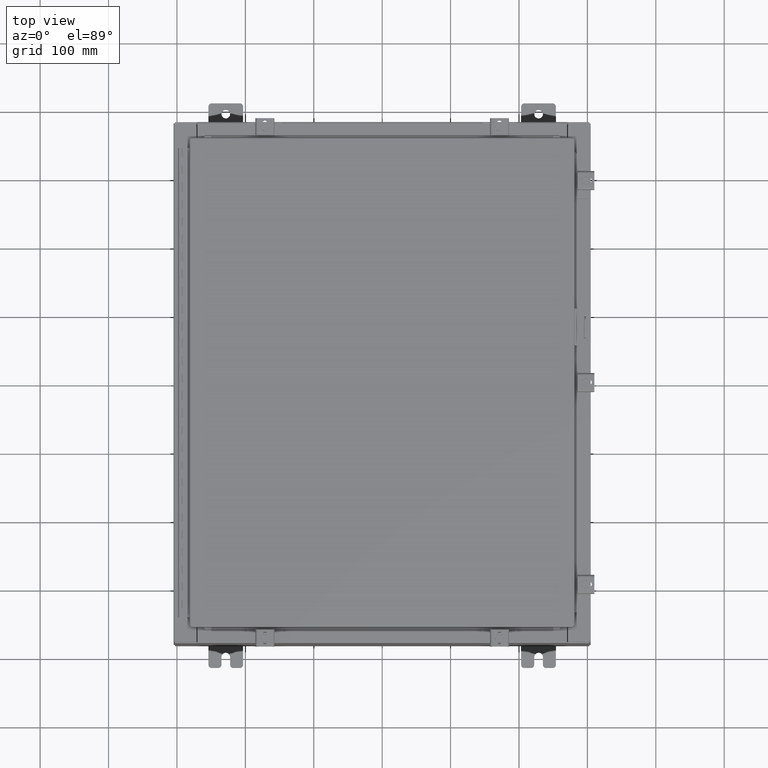
[diagram: clean part render]
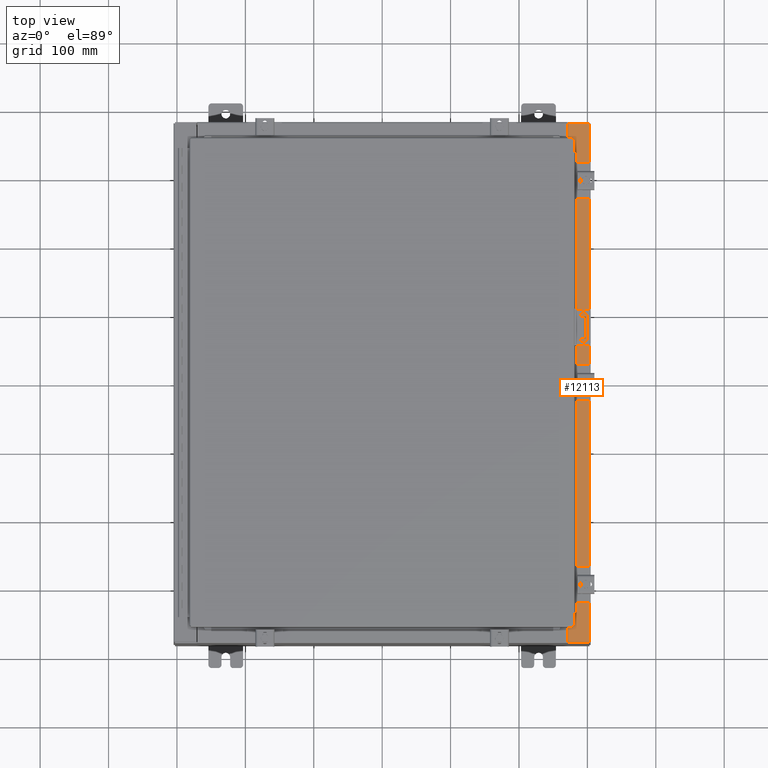
[diagram: same view with one face highlighted and labeled with its STEP entity id]
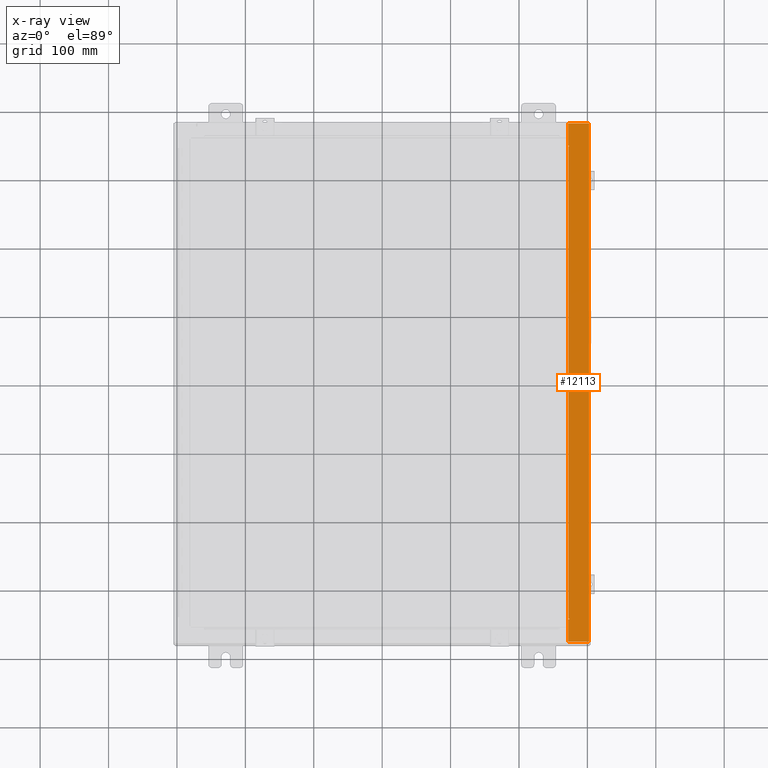
[diagram: x-ray of the same camera — body ghosted, the highlighted face saturated]
A machine part, top view. The second image highlights one B-rep face of the part: STEP entity #12113.
The next image is the same camera in x-ray: the body ghosted, the highlighted face saturated — about 0% of this face is hidden behind the body in this view.
In plain terms, the highlighted planar face has unit normal (-0, 0, -1).
Its self-contained STEP definition (entity closure, byte-faithful):
#699 = ORIENTED_EDGE ( 'NONE', *, *, #17463, .F. ) ;
#931 = VECTOR ( 'NONE', #15408, 39.37007874015748100 ) ;
#1081 = AXIS2_PLACEMENT_3D ( 'NONE', #29965, #23346, #25343 ) ;
#1295 = AXIS2_PLACEMENT_3D ( 'NONE', #14265, #31699, #14389 ) ;
#1297 = LINE ( 'NONE', #31774, #15767 ) ;
#2479 = EDGE_CURVE ( 'NONE', #36858, #18538, #30727, .T. ) ;
#2612 = EDGE_CURVE ( 'NONE', #6537, #30494, #21292, .T. ) ;
#4222 = VERTEX_POINT ( 'NONE', #16111 ) ;
#4487 = ORIENTED_EDGE ( 'NONE', *, *, #31104, .F. ) ;
#4903 = VERTEX_POINT ( 'NONE', #11041 ) ;
#5067 = LINE ( 'NONE', #21038, #27238 ) ;
#5132 = LINE ( 'NONE', #8047, #35910 ) ;
#5388 = EDGE_CURVE ( 'NONE', #9351, #4222, #14932, .T. ) ;
#5691 = PLANE ( 'NONE',  #1295 ) ;
#5707 = FACE_OUTER_BOUND ( 'NONE', #17591, .T. ) ;
#6063 = DIRECTION ( 'NONE',  ( -5.135634964896009300E-031, -1.000000000000000000, 2.747344792763031300E-045 ) ) ;
#6179 = ORIENTED_EDGE ( 'NONE', *, *, #5388, .F. ) ;
#6360 = EDGE_CURVE ( 'NONE', #30494, #11906, #1297, .T. ) ;
#6421 = CARTESIAN_POINT ( 'NONE',  ( 10.75005000000003400, -13.61242500000000000, 9.925300000000008900 ) ) ;
#6537 = VERTEX_POINT ( 'NONE', #11660 ) ;
#7151 = CARTESIAN_POINT ( 'NONE',  ( 10.75005000000003400, 13.63109999999999800, 9.925300000000008900 ) ) ;
#7561 = CARTESIAN_POINT ( 'NONE',  ( 10.69970000000003200, 13.63109999999999800, 9.925300000000008900 ) ) ;
#7784 = LINE ( 'NONE', #7151, #21399 ) ;
#8047 = CARTESIAN_POINT ( 'NONE',  ( 11.91230000000003200, -14.92529999999999800, 9.925300000000001800 ) ) ;
#8972 = ORIENTED_EDGE ( 'NONE', *, *, #33617, .F. ) ;
#9313 = DIRECTION ( 'NONE',  ( 1.000000000000000000, 0.0000000000000000000, 0.0000000000000000000 ) ) ;
#9351 = VERTEX_POINT ( 'NONE', #29351 ) ;
#9396 = ORIENTED_EDGE ( 'NONE', *, *, #36766, .F. ) ;
#9784 = VECTOR ( 'NONE', #10780, 39.37007874015748100 ) ;
#9831 = ORIENTED_EDGE ( 'NONE', *, *, #2479, .T. ) ;
#10046 = DIRECTION ( 'NONE',  ( -1.000000000000000000, 0.0000000000000000000, 0.0000000000000000000 ) ) ;
#10780 = DIRECTION ( 'NONE',  ( 1.000000000000000000, 0.0000000000000000000, 0.0000000000000000000 ) ) ;
#11041 = CARTESIAN_POINT ( 'NONE',  ( 10.71270000000003500, 13.59375000000000000, 9.925300000000008900 ) ) ;
#11463 = VERTEX_POINT ( 'NONE', #20025 ) ;
#11660 = CARTESIAN_POINT ( 'NONE',  ( 11.91230000000003200, 14.92529999999999800, 9.925300000000001800 ) ) ;
#11677 = LINE ( 'NONE', #32006, #33853 ) ;
#11906 = VERTEX_POINT ( 'NONE', #7561 ) ;
#12113 = ADVANCED_FACE ( 'NONE', ( #5707 ), #5691, .F. ) ;
#12240 = EDGE_CURVE ( 'NONE', #27054, #32953, #15639, .T. ) ;
#13687 = CARTESIAN_POINT ( 'NONE',  ( 10.69970000000003200, -13.63109999999999800, 9.925300000000008900 ) ) ;
#14265 = CARTESIAN_POINT ( 'NONE',  ( 5.335691853495958500E-014, 0.0000000000000000000, 9.925300000000065700 ) ) ;
#14389 = DIRECTION ( 'NONE',  ( -1.000000000000000000, 0.0000000000000000000, 5.349571789159788500E-015 ) ) ;
#14845 = CARTESIAN_POINT ( 'NONE',  ( 11.91230000000003200, -14.92529999999999800, 9.925300000000001800 ) ) ;
#14932 = CIRCLE ( 'NONE', #1081, 0.01867499999999949400 ) ;
#15408 = DIRECTION ( 'NONE',  ( -5.135634964896009300E-031, -1.000000000000000000, 2.747344792763031300E-045 ) ) ;
#15639 = CIRCLE ( 'NONE', #18771, 0.01867499999999949400 ) ;
#15767 = VECTOR ( 'NONE', #6063, 39.37007874015748100 ) ;
#16111 = CARTESIAN_POINT ( 'NONE',  ( 10.75005000000003400, 13.63109999999999800, 9.925300000000008900 ) ) ;
#16553 = DIRECTION ( 'NONE',  ( -0.0000000000000000000, -1.000000000000000000, -0.0000000000000000000 ) ) ;
#16606 = VECTOR ( 'NONE', #22323, 39.37007874015748100 ) ;
#17463 = EDGE_CURVE ( 'NONE', #4903, #9351, #18069, .T. ) ;
#17591 = EDGE_LOOP ( 'NONE', ( #4487, #9831, #31174, #24876, #24827, #17627, #32496, #6179, #699, #9396, #8972, #20033 ) ) ;
#17627 = ORIENTED_EDGE ( 'NONE', *, *, #6360, .T. ) ;
#17640 = EDGE_CURVE ( 'NONE', #18538, #23135, #11677, .T. ) ;
#18069 = LINE ( 'NONE', #34058, #32522 ) ;
#18538 = VERTEX_POINT ( 'NONE', #37149 ) ;
#18648 = CARTESIAN_POINT ( 'NONE',  ( 10.75005000000003400, -13.63109999999999800, 9.925300000000008900 ) ) ;
#18771 = AXIS2_PLACEMENT_3D ( 'NONE', #6421, #26668, #9313 ) ;
#18839 = CARTESIAN_POINT ( 'NONE',  ( 5.335691853495958500E-014, 14.92529999999999800, 9.925300000000065700 ) ) ;
#19333 = DIRECTION ( 'NONE',  ( -1.000000000000000000, 4.861730685829018000E-063, 5.349571789159789300E-015 ) ) ;
#20025 = CARTESIAN_POINT ( 'NONE',  ( 10.71270000000003500, -13.59375000000000000, 9.925300000000008900 ) ) ;
#20033 = ORIENTED_EDGE ( 'NONE', *, *, #12240, .F. ) ;
#20688 = EDGE_CURVE ( 'NONE', #6537, #23135, #5132, .T. ) ;
#21038 = CARTESIAN_POINT ( 'NONE',  ( 10.75005000000003400, -13.59375000000000000, 9.925300000000008900 ) ) ;
#21086 = EDGE_CURVE ( 'NONE', #4222, #11906, #7784, .T. ) ;
#21292 = LINE ( 'NONE', #18839, #34851 ) ;
#21399 = VECTOR ( 'NONE', #10046, 39.37007874015748100 ) ;
#22323 = DIRECTION ( 'NONE',  ( -0.0000000000000000000, 1.000000000000000000, -0.0000000000000000000 ) ) ;
#23135 = VERTEX_POINT ( 'NONE', #14845 ) ;
#23346 = DIRECTION ( 'NONE',  ( 5.349571789159788500E-015, 0.0000000000000000000, 1.000000000000000000 ) ) ;
#24361 = LINE ( 'NONE', #33812, #16606 ) ;
#24827 = ORIENTED_EDGE ( 'NONE', *, *, #2612, .T. ) ;
#24876 = ORIENTED_EDGE ( 'NONE', *, *, #20688, .F. ) ;
#25179 = LINE ( 'NONE', #13687, #9784 ) ;
#25264 = CARTESIAN_POINT ( 'NONE',  ( 10.69970000000003200, 14.92529999999999800, 9.925300000000008900 ) ) ;
#25343 = DIRECTION ( 'NONE',  ( 1.000000000000000000, 0.0000000000000000000, 0.0000000000000000000 ) ) ;
#26668 = DIRECTION ( 'NONE',  ( 5.349571789159788500E-015, 0.0000000000000000000, 1.000000000000000000 ) ) ;
#27054 = VERTEX_POINT ( 'NONE', #18648 ) ;
#27238 = VECTOR ( 'NONE', #29726, 39.37007874015748100 ) ;
#28367 = CARTESIAN_POINT ( 'NONE',  ( 10.75005000000003400, -13.59375000000000000, 9.925300000000008900 ) ) ;
#29351 = CARTESIAN_POINT ( 'NONE',  ( 10.75005000000003400, 13.59375000000000000, 9.925300000000008900 ) ) ;
#29726 = DIRECTION ( 'NONE',  ( -1.000000000000000000, 0.0000000000000000000, 0.0000000000000000000 ) ) ;
#29965 = CARTESIAN_POINT ( 'NONE',  ( 10.75005000000003400, 13.61242500000000000, 9.925300000000008900 ) ) ;
#30494 = VERTEX_POINT ( 'NONE', #25264 ) ;
#30727 = LINE ( 'NONE', #31191, #931 ) ;
#31104 = EDGE_CURVE ( 'NONE', #36858, #27054, #25179, .T. ) ;
#31174 = ORIENTED_EDGE ( 'NONE', *, *, #17640, .T. ) ;
#31191 = CARTESIAN_POINT ( 'NONE',  ( 10.69970000000003200, -5.494975343389772900E-030, 9.925300000000008900 ) ) ;
#31699 = DIRECTION ( 'NONE',  ( -5.349571789159788500E-015, 0.0000000000000000000, -1.000000000000000000 ) ) ;
#31774 = CARTESIAN_POINT ( 'NONE',  ( 10.69970000000003200, -5.494975343389772900E-030, 9.925300000000008900 ) ) ;
#32006 = CARTESIAN_POINT ( 'NONE',  ( 5.335691853495958500E-014, -14.92529999999999800, 9.925300000000065700 ) ) ;
#32496 = ORIENTED_EDGE ( 'NONE', *, *, #21086, .F. ) ;
#32522 = VECTOR ( 'NONE', #36960, 39.37007874015748100 ) ;
#32953 = VERTEX_POINT ( 'NONE', #28367 ) ;
#33617 = EDGE_CURVE ( 'NONE', #32953, #11463, #5067, .T. ) ;
#33812 = CARTESIAN_POINT ( 'NONE',  ( 10.71270000000003500, -13.59375000000000000, 9.925300000000008900 ) ) ;
#33853 = VECTOR ( 'NONE', #34941, 39.37007874015748100 ) ;
#34058 = CARTESIAN_POINT ( 'NONE',  ( 10.71270000000003500, 13.59375000000000000, 9.925300000000008900 ) ) ;
#34851 = VECTOR ( 'NONE', #19333, 39.37007874015748100 ) ;
#34941 = DIRECTION ( 'NONE',  ( 1.000000000000000000, 1.305543112181250400E-031, -5.349571789159789300E-015 ) ) ;
#35910 = VECTOR ( 'NONE', #16553, 39.37007874015748100 ) ;
#36766 = EDGE_CURVE ( 'NONE', #11463, #4903, #24361, .T. ) ;
#36858 = VERTEX_POINT ( 'NONE', #37092 ) ;
#36960 = DIRECTION ( 'NONE',  ( 1.000000000000000000, 0.0000000000000000000, 0.0000000000000000000 ) ) ;
#37092 = CARTESIAN_POINT ( 'NONE',  ( 10.69970000000003200, -13.63109999999999800, 9.925300000000008900 ) ) ;
#37149 = CARTESIAN_POINT ( 'NONE',  ( 10.69970000000003200, -14.92529999999999800, 9.925300000000008900 ) ) ;